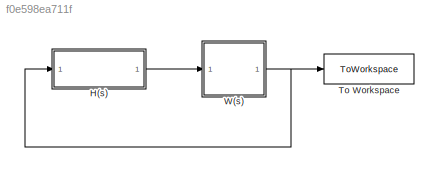
MODEL slx_f0e598ea711f
KIND model
CONFIG AbsTol = auto
CONFIG EnableMultiTasking = off
CONFIG FixedStep = 0.001
CONFIG MaxStep = auto
CONFIG MinStep = auto
CONFIG RelTol = 1e-3
CONFIG SampleTimeConstraint = Unconstrained
CONFIG SolverName = FixedStepAuto
CONFIG StartTime = 0.0
CONFIG StopTime = 10.0
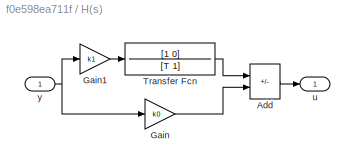
BLOCK [SubSystem] H(s)
BLOCK [Sum] H(s)/Add
  IconShape = rectangular
  Inputs = --
BLOCK [Gain] H(s)/Gain
  Gain = k0
BLOCK [Gain] H(s)/Gain1
  Gain = k1
BLOCK [TransferFcn] H(s)/Transfer Fcn
  Denominator = [T 1]
  Numerator = [1 0]
BLOCK [Outport] H(s)/u
BLOCK [Inport] H(s)/y
BLOCK [ToWorkspace] To Workspace
  FixptAsFi = on
  MaxDataPoints = inf
  SampleTime = -1
  SaveFormat = Timeseries
  VariableName = y
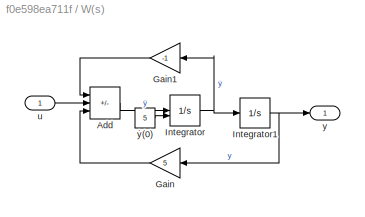
BLOCK [SubSystem] W(s)
BLOCK [Sum] W(s)/Add
  IconShape = rectangular
  Inputs = -+-
BLOCK [Gain] W(s)/Gain
  Gain = 5
BLOCK [Gain] W(s)/Gain1
  Gain = -1
BLOCK [Integrator] W(s)/Integrator
  InitialCondition = 5
  InitialConditionSource = external
BLOCK [Integrator] W(s)/Integrator1
BLOCK [Inport] W(s)/u
BLOCK [Outport] W(s)/y
BLOCK [Constant] W(s)/ẏ(0)
  Value = 5
LINE H(s)/Add:1 -> H(s)/u:1
LINE H(s)/Gain1:1 -> H(s)/Transfer Fcn:1
LINE H(s)/Gain:1 -> H(s)/Add:2
LINE H(s)/Transfer Fcn:1 -> H(s)/Add:1
NET H(s)/y:1 -> H(s)/Gain1:1, H(s)/Gain:1
LINE H(s):1 -> W(s):1
LINE W(s)/Add:1 -> W(s)/Integrator:1
LINE W(s)/Gain1:1 -> W(s)/Add:1
LINE W(s)/Gain:1 -> W(s)/Add:3
NET W(s)/Integrator1:1 -> W(s)/Gain:1, W(s)/y:1
NET W(s)/Integrator:1 -> W(s)/Gain1:1, W(s)/Integrator1:1
LINE W(s)/u:1 -> W(s)/Add:2
LINE W(s)/ẏ(0):1 -> W(s)/Integrator:2
NET W(s):1 -> H(s):1, To Workspace:1
note: NET lines group one-source signal fan-out (src -> all destinations, sorted); 1:1 wires keep LINE
